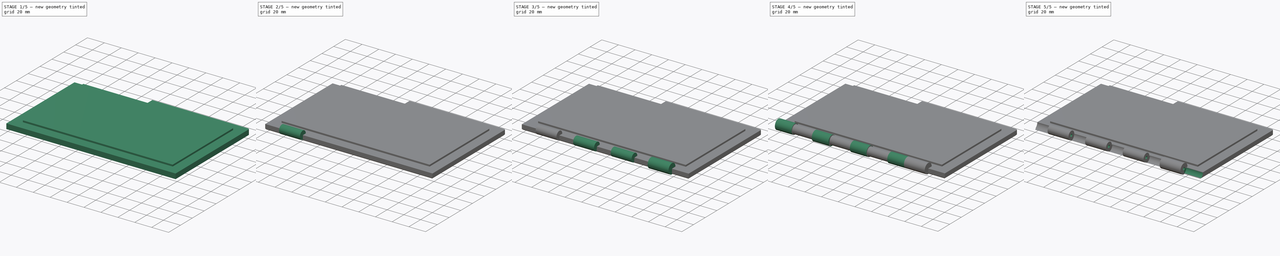
[diagram: build sequence overview — one tinted view per stage of 5, left to right]
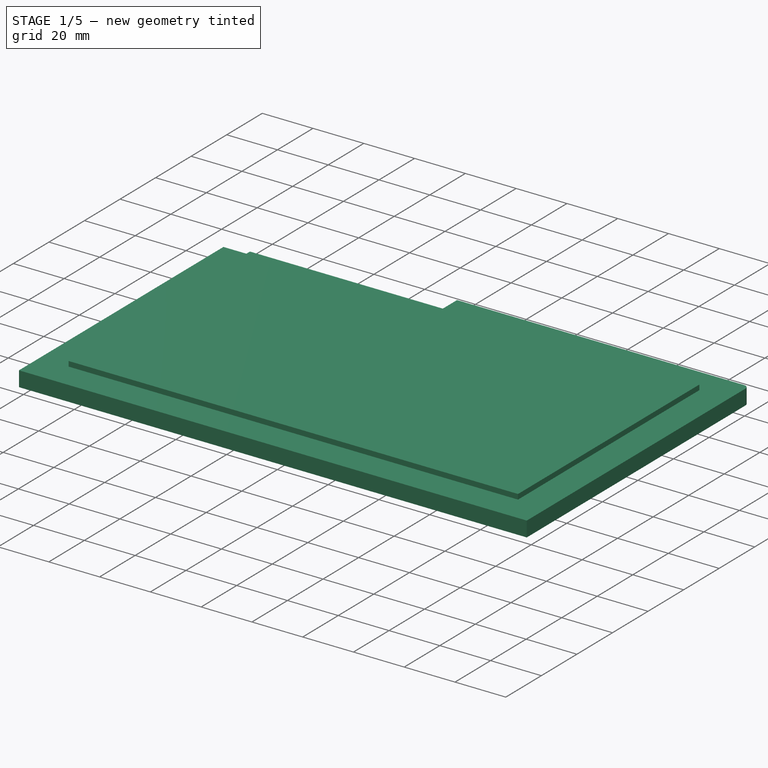
[diagram: stage 1 of 5 — iso view after this stage's code; geometry added in this stage tinted green]
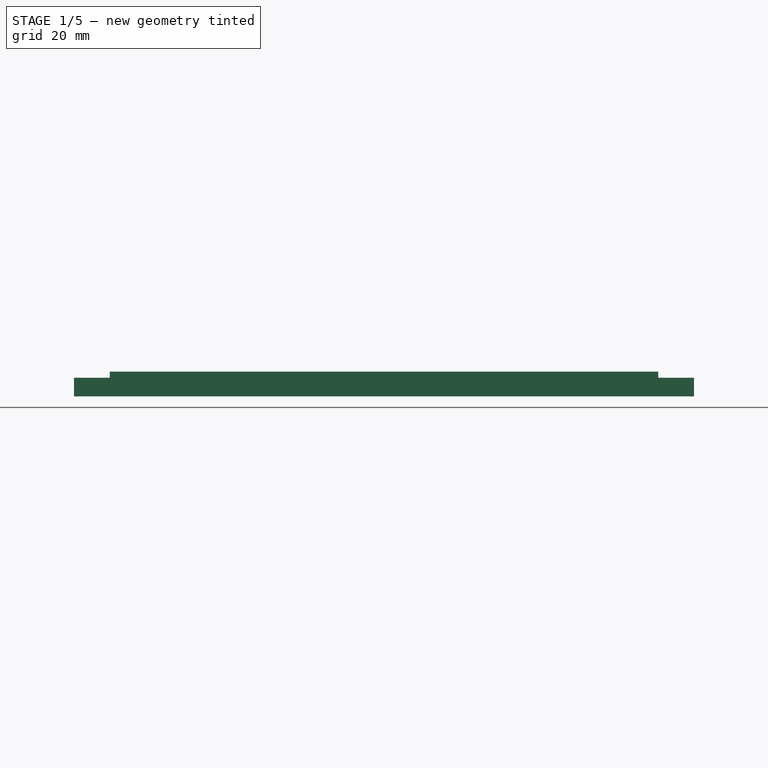
[diagram: stage 1 of 5 — front view after this stage's code; geometry added in this stage tinted green]
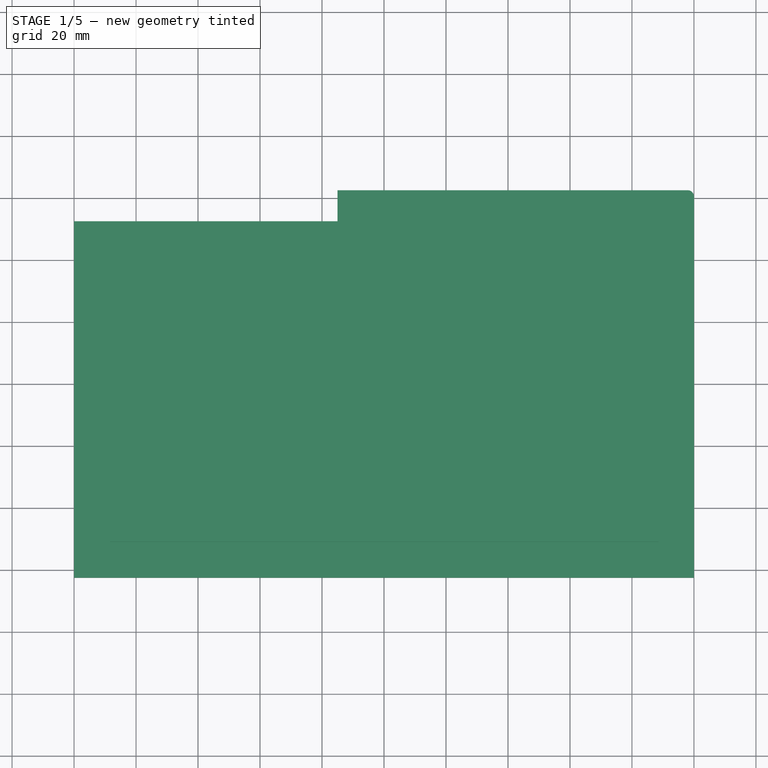
[diagram: stage 1 of 5 — top view after this stage's code; geometry added in this stage tinted green]
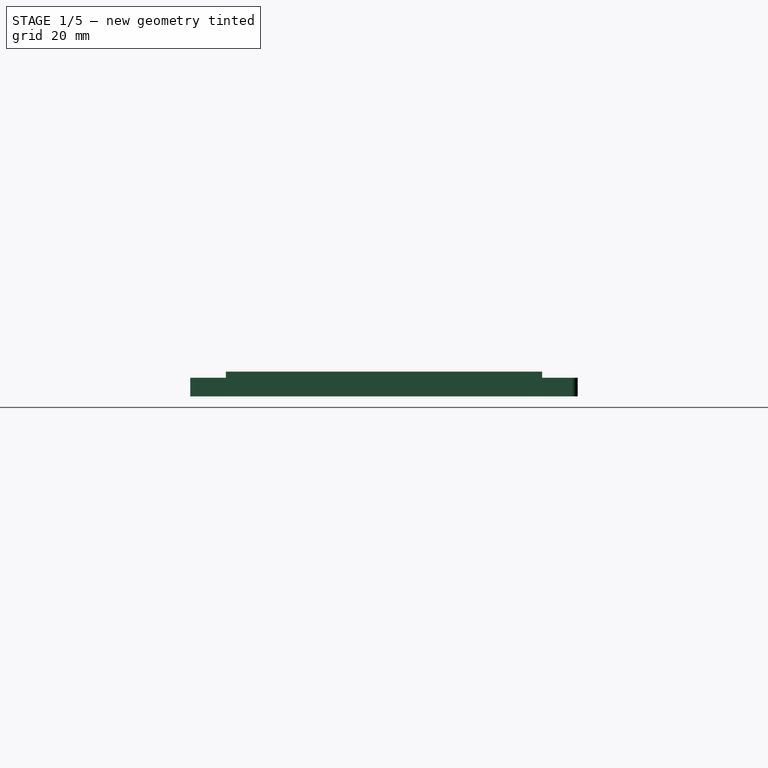
[diagram: stage 1 of 5 — right view after this stage's code; geometry added in this stage tinted green]
FCSTD DOCUMENT  (FreeCAD 0.19R)
Label: SwitchCaseSmallRLidLatch1
License: All rights reserved
LicenseURL: http://en.wikipedia.org/wiki/All_rights_reserved
objects: Part::Cylinder×10, Sketcher::SketchObject×4, Part::MultiFuse×3, PartDesign::Chamfer×3, PartDesign::Pad×2, PartDesign::Pocket×2, Part::Cut×2, PartDesign::ShapeBinder×1, PartDesign::Fillet×1, PartDesign::Body×1
note: 37 computed .brp shape members not serialized (recipe doc carries the construction recipe); baked Part::Feature solids carry a one-line shape summary decoded from their .brp

FEATURE [Sketcher::SketchObject] Sketch
  FullyConstrained = true
  MapMode = 5
  Support = -> [XY_Plane]
  sketch-geometry (4):
    g0: LineSegment StartX=-100 StartY=62.5 StartZ=0 EndX=100 EndY=62.5 EndZ=0
    g1: LineSegment StartX=100 StartY=62.5 StartZ=0 EndX=100 EndY=-62.5 EndZ=0
    g2: LineSegment StartX=100 StartY=-62.5 StartZ=0 EndX=-100 EndY=-62.5 EndZ=0
    g3: LineSegment StartX=-100 StartY=-62.5 StartZ=0 EndX=-100 EndY=62.5 EndZ=0
  constraints (11):
    c: Coincident(g0,g1)
    c: Coincident(g1,g2)
    c: Coincident(g2,g3)
    c: Coincident(g3,g0)
    c: Horizontal(g0)
    c: Horizontal(g2)
    c: Vertical(g1)
    c: Vertical(g3)
    c: Symmetric(g0,g2,g-1)
    c: Distance(g0) = 200
    c: Distance(g1) = 125
FEATURE [PartDesign::Pad] Pad
  Direction = (1,1,1)
  Length = 6
  Length2 = 100
  Profile = -> Sketch
  Type = 0
FEATURE [Sketcher::SketchObject] Sketch001
  FullyConstrained = true
  MapMode = 5
  Placement = pos=(0,0,6) rot=(0,0,1;0rad)
  Support = -> [Pad]
  sketch-geometry (4):
    g0: LineSegment StartX=-88.5 StartY=51 StartZ=0 EndX=88.5 EndY=51 EndZ=0
    g1: LineSegment StartX=88.5 StartY=51 StartZ=0 EndX=88.5 EndY=-51 EndZ=0
    g2: LineSegment StartX=88.5 StartY=-51 StartZ=0 EndX=-88.5 EndY=-51 EndZ=0
    g3: LineSegment StartX=-88.5 StartY=-51 StartZ=0 EndX=-88.5 EndY=51 EndZ=0
  constraints (11):
    c: Coincident(g0,g1)
    c: Coincident(g1,g2)
    c: Coincident(g2,g3)
    c: Coincident(g3,g0)
    c: Horizontal(g0)
    c: Horizontal(g2)
    c: Vertical(g1)
    c: Vertical(g3)
    c: Distance(g0) = 177
    c: Distance(g1) = 102
    c: Symmetric(g0,g2,g-1)
FEATURE [PartDesign::Pad] Pad001
  BaseFeature = -> Pad
  Direction = (1,1,1)
  Length = 2
  Length2 = 100
  Profile = -> Sketch001
  Type = 0
FEATURE [PartDesign::ShapeBinder] CopyCut001
  TraceSupport = false
FEATURE [Sketcher::SketchObject] Sketch002
  ExternalGeometry = -> [Pad001]
  FullyConstrained = true
  MapMode = 5
  Placement = pos=(-100,0,0) rot=(0.57735,-0.57735,-0.57735;2.0944rad)
  Support = -> [Pad001]
  sketch-geometry (4):
    g0: LineSegment StartX=-60.5 StartY=0 StartZ=0 EndX=-56.9645 EndY=3.53553 EndZ=0
    g1: LineSegment StartX=-56.9645 StartY=3.53553 StartZ=0 EndX=-53.4289 EndY=-1.4011e-12 EndZ=0
    g2: LineSegment StartX=-53.4289 StartY=-1.4011e-12 StartZ=0 EndX=-56.9645 EndY=-3.53553 EndZ=0
    g3: LineSegment StartX=-56.9645 StartY=-3.53553 StartZ=0 EndX=-60.5 EndY=0 EndZ=0
  constraints (12):
    c: Coincident(g0,g1)
    c: Coincident(g1,g2)
    c: Coincident(g2,g3)
    c: Coincident(g3,g0)
    c: Equal(g2,g3)
    c: Equal(g3,g0)
    c: Equal(g0,g1)
    c: Perpendicular(g1,g0)
    c: Angle(g1) = -0.785398
    c: Distance(g1) = 5
    c: PointOnObject(g0,g-1)
    c: Distance(g0,g-3) = 2
FEATURE [PartDesign::Pocket] Pocket
  BaseFeature = -> Pad001
  Length = 120
  Length2 = 100
  Profile = -> Sketch002
  Type = 0
FEATURE [Sketcher::SketchObject] Sketch003
  ExternalGeometry = -> [Pocket]
  FullyConstrained = true
  MapMode = 5
  Placement = pos=(0,0,0) rot=(1,0,0;3.14159rad)
  Support = -> [Pocket]
  sketch-geometry (4):
    g0: LineSegment StartX=-15 StartY=-62.5 StartZ=0 EndX=-100 EndY=-62.5 EndZ=0
    g1: LineSegment StartX=-100 StartY=-62.5 StartZ=0 EndX=-100 EndY=-52.5 EndZ=0
    g2: LineSegment StartX=-100 StartY=-52.5 StartZ=0 EndX=-15 EndY=-52.5 EndZ=0
    g3: LineSegment StartX=-15 StartY=-52.5 StartZ=0 EndX=-15 EndY=-62.5 EndZ=0
  constraints (11):
    c: Coincident(g0,g1)
    c: Coincident(g1,g2)
    c: Coincident(g2,g3)
    c: Coincident(g3,g0)
    c: Horizontal(g0)
    c: Horizontal(g2)
    c: Vertical(g1)
    c: Vertical(g3)
    c: Distance(g1) = 10
    c: Coincident(g0,g-3)
    c: DistanceX(g0) = -15
FEATURE [PartDesign::Pocket] Pocket001
  BaseFeature = -> Pocket
  Length = 5
  Length2 = 100
  Profile = -> Sketch003
  Type = 1
FEATURE [PartDesign::Fillet] Fillet
  Base = -> Pocket001 [Edge2]
  BaseFeature = -> Pocket001
  Radius = 2
  SupportTransform = false
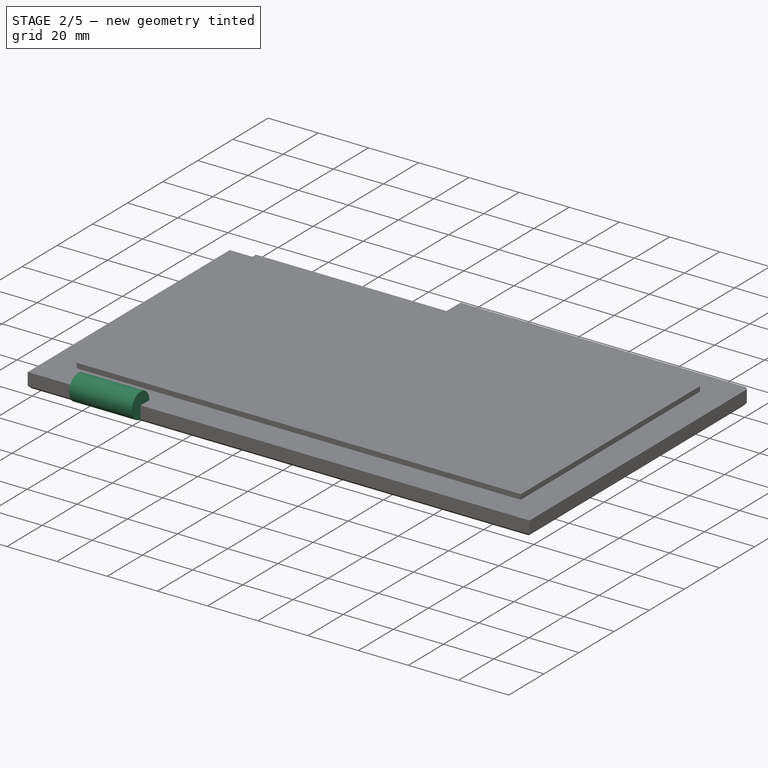
[diagram: stage 2 of 5 — iso view after this stage's code; geometry added in this stage tinted green]
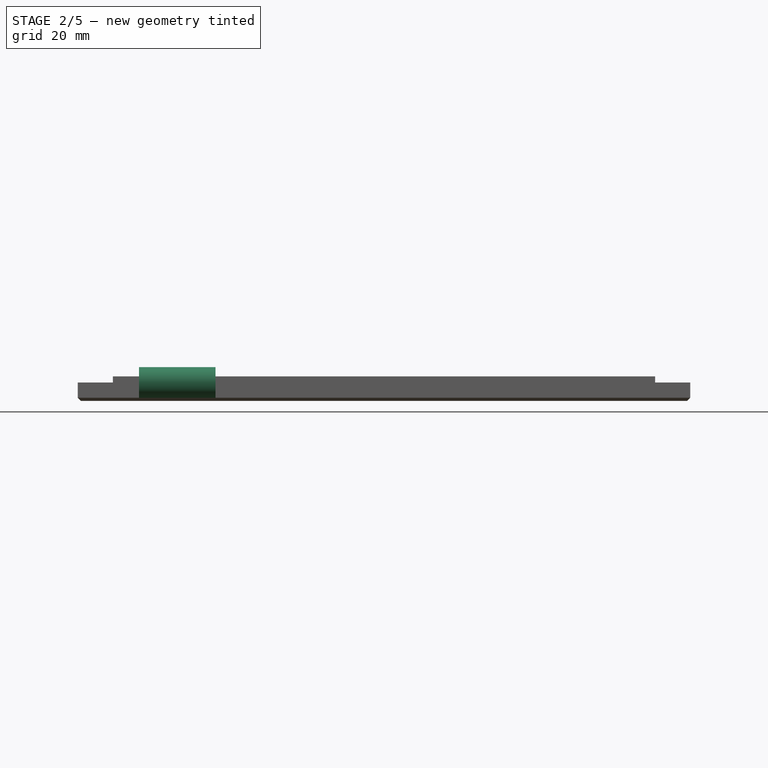
[diagram: stage 2 of 5 — front view after this stage's code; geometry added in this stage tinted green]
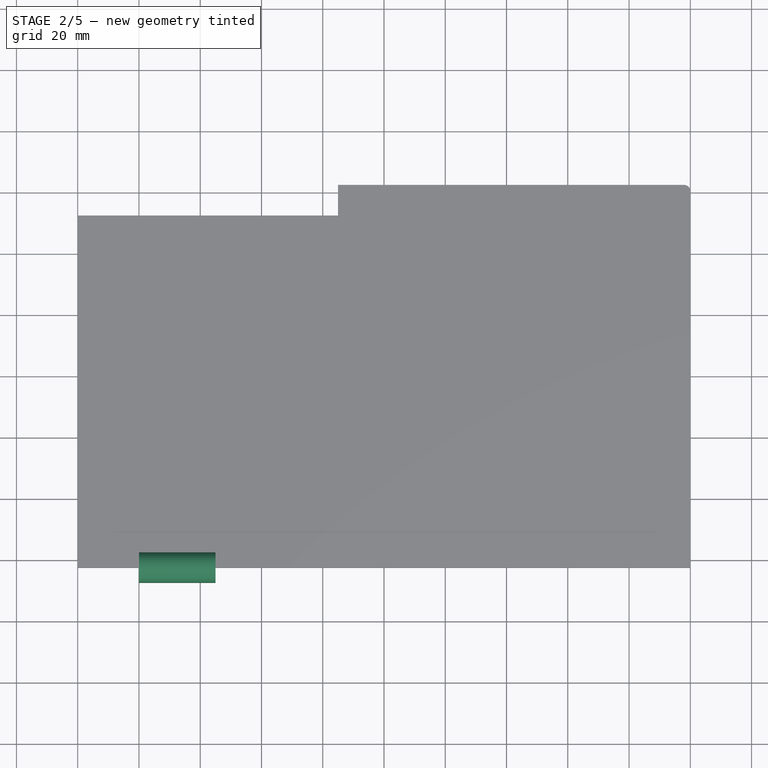
[diagram: stage 2 of 5 — top view after this stage's code; geometry added in this stage tinted green]
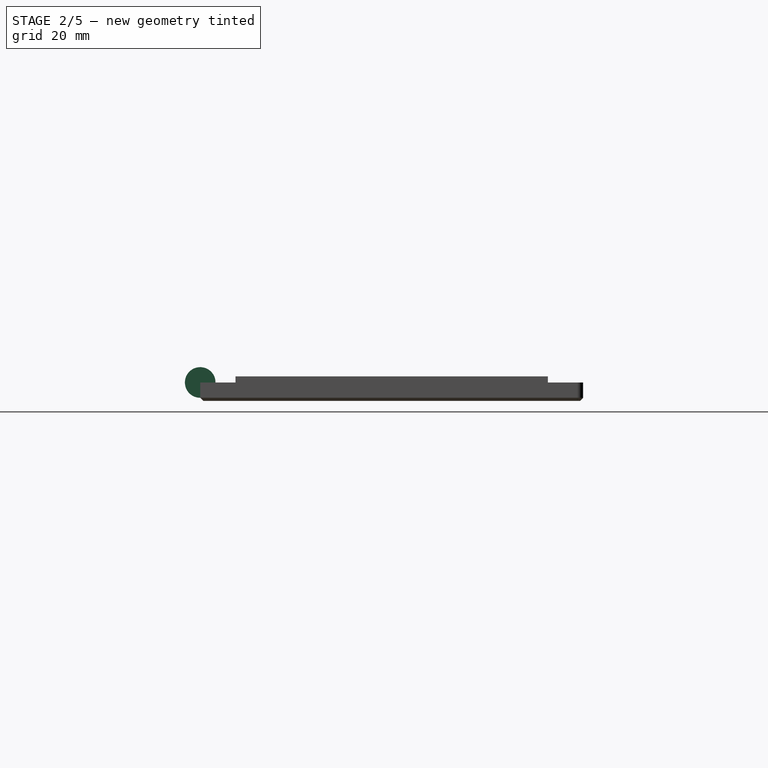
[diagram: stage 2 of 5 — right view after this stage's code; geometry added in this stage tinted green]
FEATURE [Part::Cylinder] Cylinder003
  Angle = 360
  AttacherType = Attacher::AttachEngine3D
  Height = 25
  Placement = pos=(-80,-62.5,6) rot=(0,1,0;1.5708rad)
  Radius = 5
FEATURE [PartDesign::Chamfer] Chamfer
  Angle = 45
  Base = -> Fillet [Edge5]
  BaseFeature = -> Fillet
  ChamferType = 0
  FlipDirection = false
  Size = 1
  Size2 = 1
  SupportTransform = false
FEATURE [PartDesign::Chamfer] Chamfer001
  Angle = 45
  Base = -> Chamfer [Edge31]
  BaseFeature = -> Chamfer
  ChamferType = 0
  FlipDirection = false
  Size = 1
  Size2 = 1
  SupportTransform = false
FEATURE [PartDesign::Chamfer] Chamfer002
  Angle = 45
  Base = -> Chamfer001 [Edge1]
  BaseFeature = -> Chamfer001
  ChamferType = 0
  FlipDirection = false
  Size = 1
  Size2 = 1
  SupportTransform = false
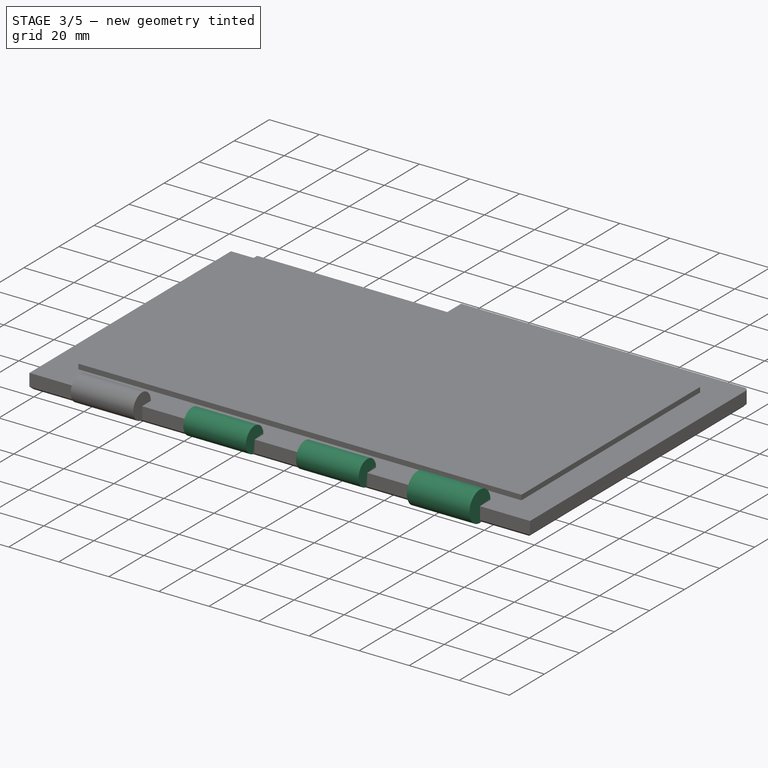
[diagram: stage 3 of 5 — iso view after this stage's code; geometry added in this stage tinted green]
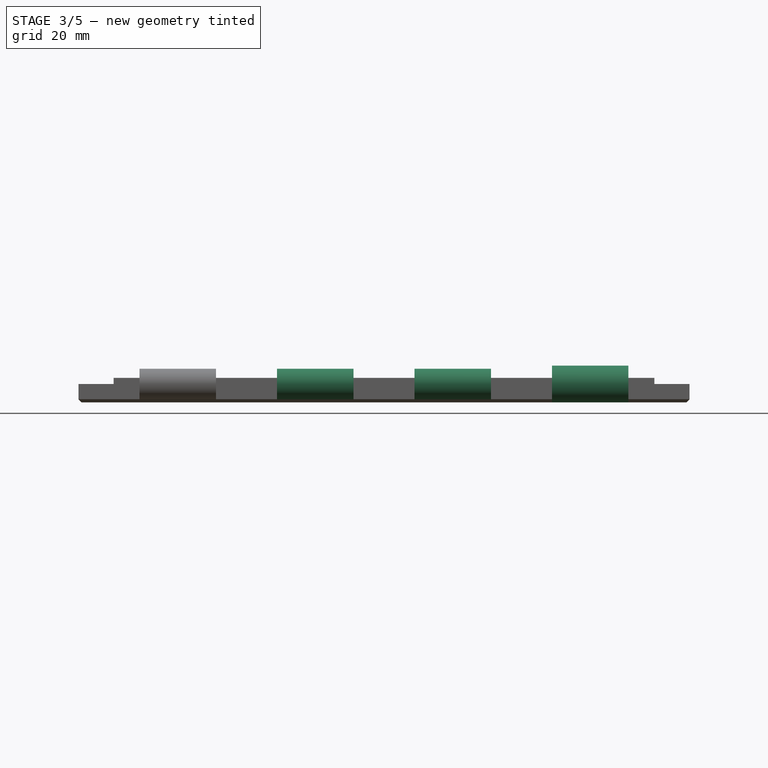
[diagram: stage 3 of 5 — front view after this stage's code; geometry added in this stage tinted green]
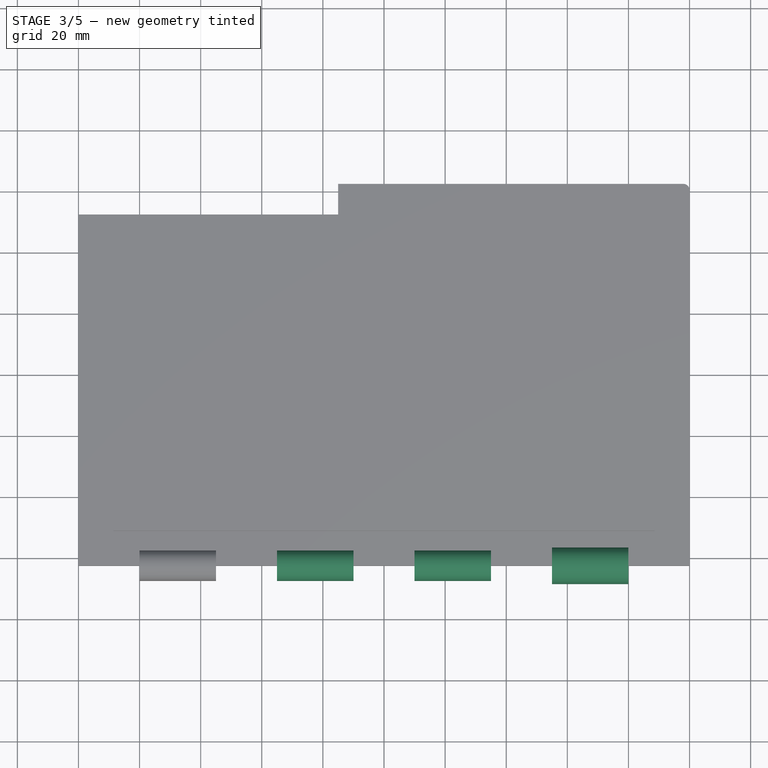
[diagram: stage 3 of 5 — top view after this stage's code; geometry added in this stage tinted green]
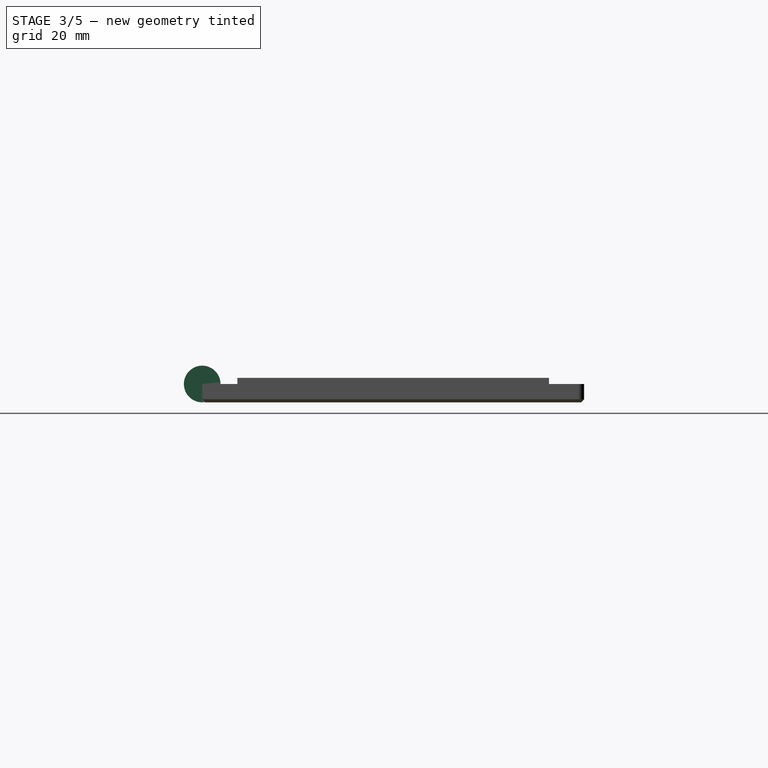
[diagram: stage 3 of 5 — right view after this stage's code; geometry added in this stage tinted green]
FEATURE [Part::Cylinder] Cylinder
  Angle = 360
  AttacherType = Attacher::AttachEngine3D
  Height = 25
  Placement = pos=(55,-62.5,6) rot=(0,1,0;1.5708rad)
  Radius = 6
FEATURE [Part::Cylinder] Cylinder001
  Angle = 360
  AttacherType = Attacher::AttachEngine3D
  Height = 25
  Placement = pos=(10,-62.5,6) rot=(0,1,0;1.5708rad)
  Radius = 5
FEATURE [Part::Cylinder] Cylinder002
  Angle = 360
  AttacherType = Attacher::AttachEngine3D
  Height = 25
  Placement = pos=(-35,-62.5,6) rot=(0,1,0;1.5708rad)
  Radius = 5
FEATURE [Part::MultiFuse] Fusion
  Shapes = -> [Cylinder,Cylinder001,Cylinder002,Cylinder003]
FEATURE [PartDesign::Body] Body
  Group = -> [Sketch,Pad,Sketch001,Pad001,CopyCut001,Sketch002,Pocket,Sketch003,Pocket001,Fillet,Chamfer,Chamfer001,Chamfer002]
  Origin = -> Origin
  Tip = -> Chamfer002
FEATURE [Part::MultiFuse] Fusion002
  Shapes = -> [Fusion,Chamfer002]
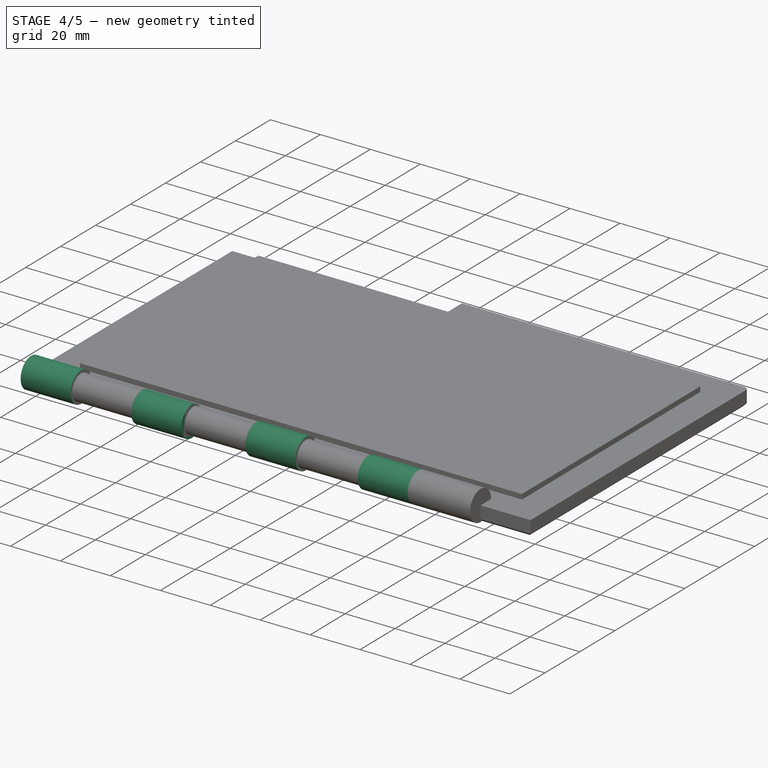
[diagram: stage 4 of 5 — iso view after this stage's code; geometry added in this stage tinted green]
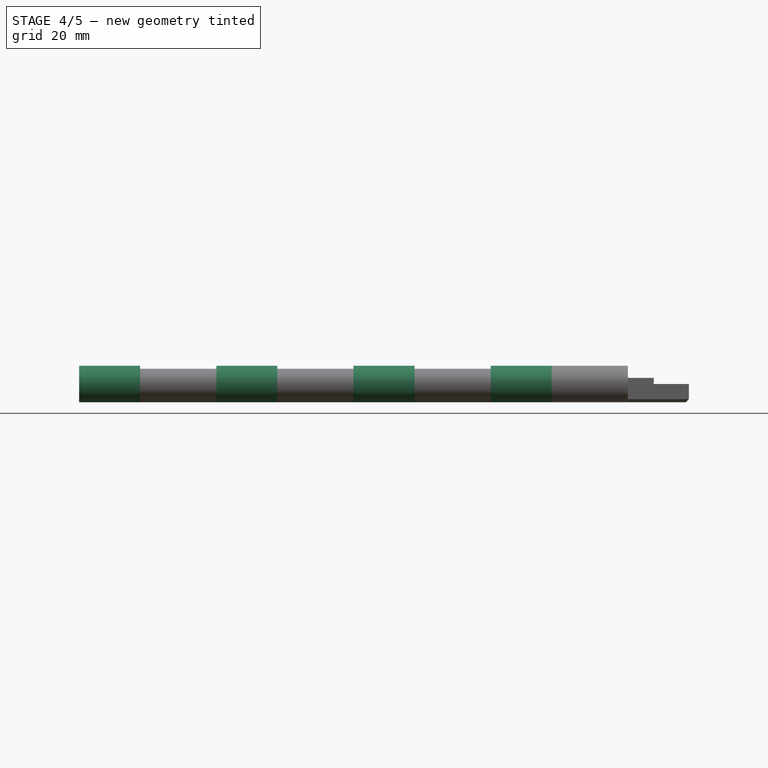
[diagram: stage 4 of 5 — front view after this stage's code; geometry added in this stage tinted green]
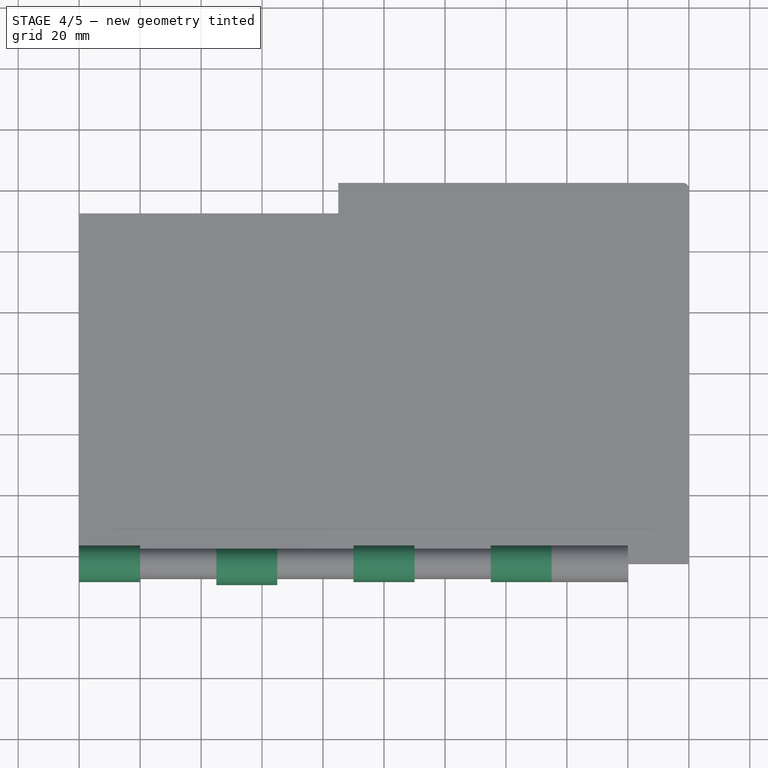
[diagram: stage 4 of 5 — top view after this stage's code; geometry added in this stage tinted green]
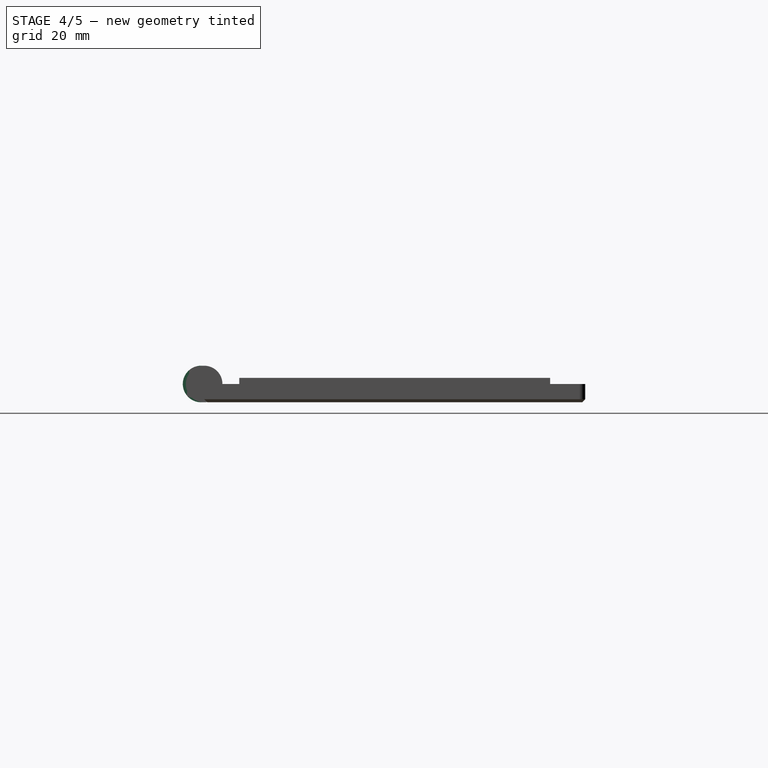
[diagram: stage 4 of 5 — right view after this stage's code; geometry added in this stage tinted green]
FEATURE [Part::Cylinder] Cylinder005
  Angle = 360
  AttacherType = Attacher::AttachEngine3D
  Height = 20
  Placement = pos=(35,-62.5,6) rot=(0,1,0;1.5708rad)
  Radius = 6
FEATURE [Part::Cylinder] Cylinder006
  Angle = 360
  AttacherType = Attacher::AttachEngine3D
  Height = 20
  Placement = pos=(-10,-62.5,6) rot=(0,1,0;1.5708rad)
  Radius = 6
FEATURE [Part::Cylinder] Cylinder007
  Angle = 360
  AttacherType = Attacher::AttachEngine3D
  Height = 20
  Placement = pos=(-55,-63.5,6) rot=(0,1,0;1.5708rad)
  Radius = 6
FEATURE [Part::Cylinder] Cylinder008
  Angle = 360
  AttacherType = Attacher::AttachEngine3D
  Height = 20
  Placement = pos=(-100,-62.5,6) rot=(0,1,0;1.5708rad)
  Radius = 6
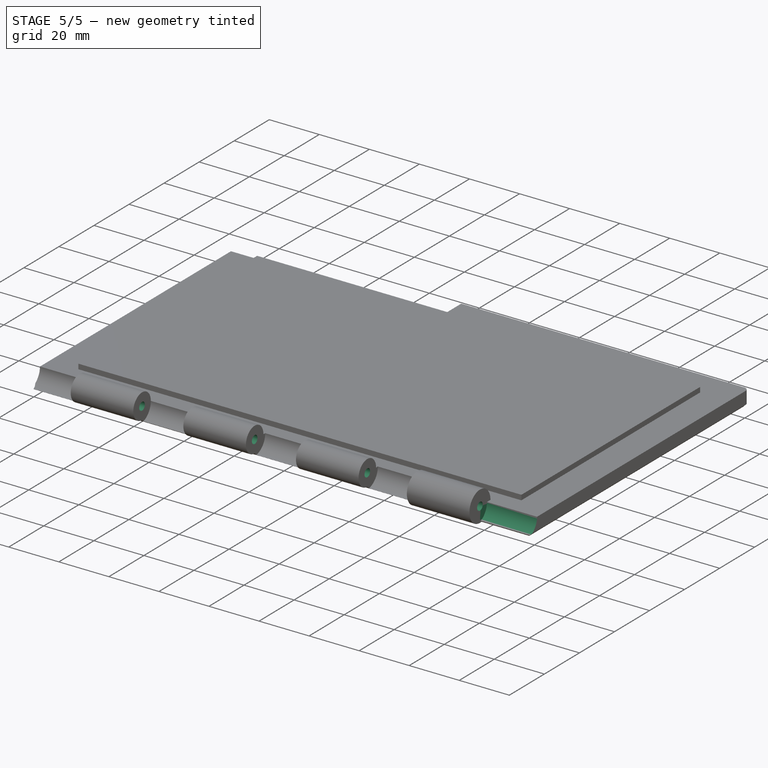
[diagram: stage 5 of 5 — iso view after this stage's code; geometry added in this stage tinted green]
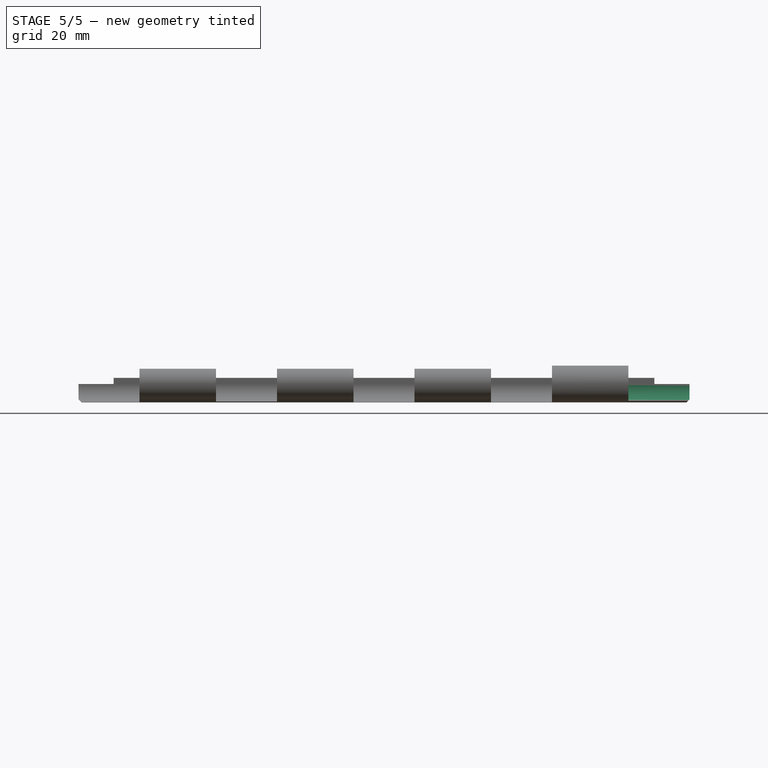
[diagram: stage 5 of 5 — front view after this stage's code; geometry added in this stage tinted green]
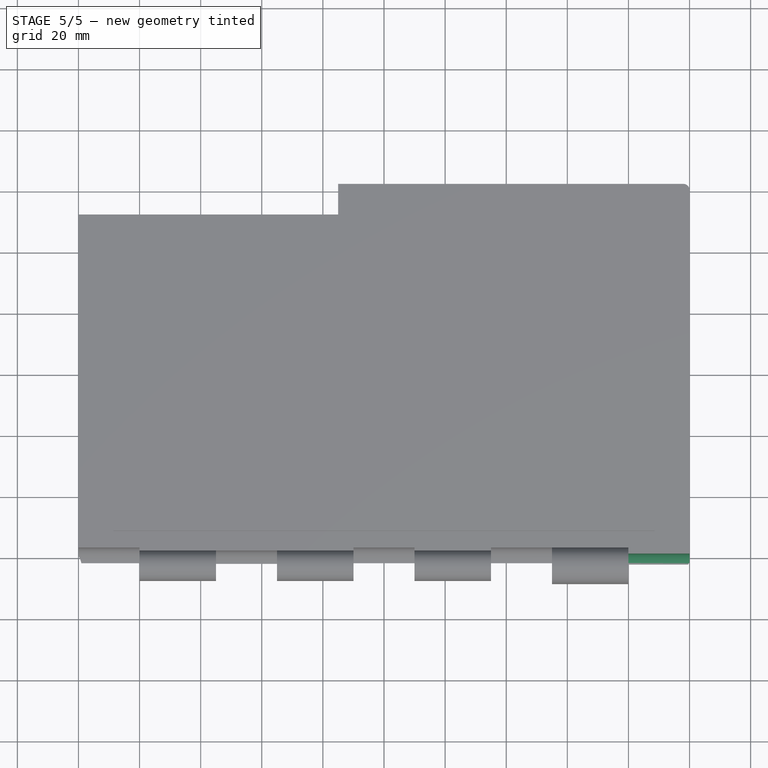
[diagram: stage 5 of 5 — top view after this stage's code; geometry added in this stage tinted green]
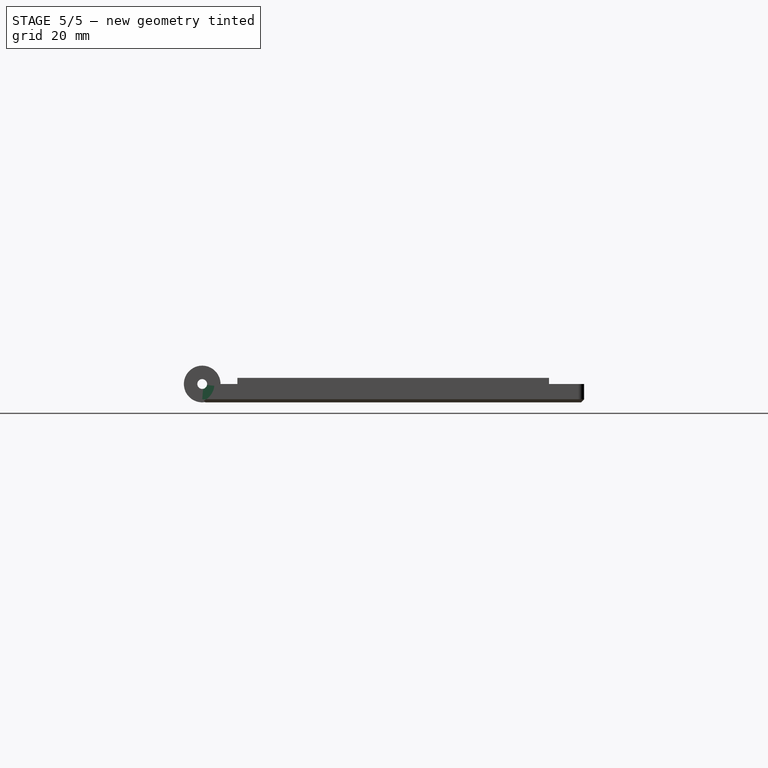
[diagram: stage 5 of 5 — right view after this stage's code; geometry added in this stage tinted green]
FEATURE [Part::Cylinder] Cylinder004
  Angle = 360
  AttacherType = Attacher::AttachEngine3D
  Height = 20
  Placement = pos=(80,-64.5,6) rot=(0,1,0;1.5708rad)
  Radius = 6
FEATURE [Part::Cylinder] Cylinder009
  Angle = 360
  AttacherType = Attacher::AttachEngine3D
  Height = 220
  Placement = pos=(-110,-62.5,6) rot=(0,1,0;1.5708rad)
  Radius = 1.6
FEATURE [Part::MultiFuse] Fusion001
  Shapes = -> [Cylinder004,Cylinder005,Cylinder006,Cylinder007,Cylinder008]
FEATURE [Part::Cut] Cut
  Base = -> Fusion002
  Tool = -> Fusion001
FEATURE [Part::Cut] Cut001
  Base = -> Cut
  Tool = -> Cylinder009
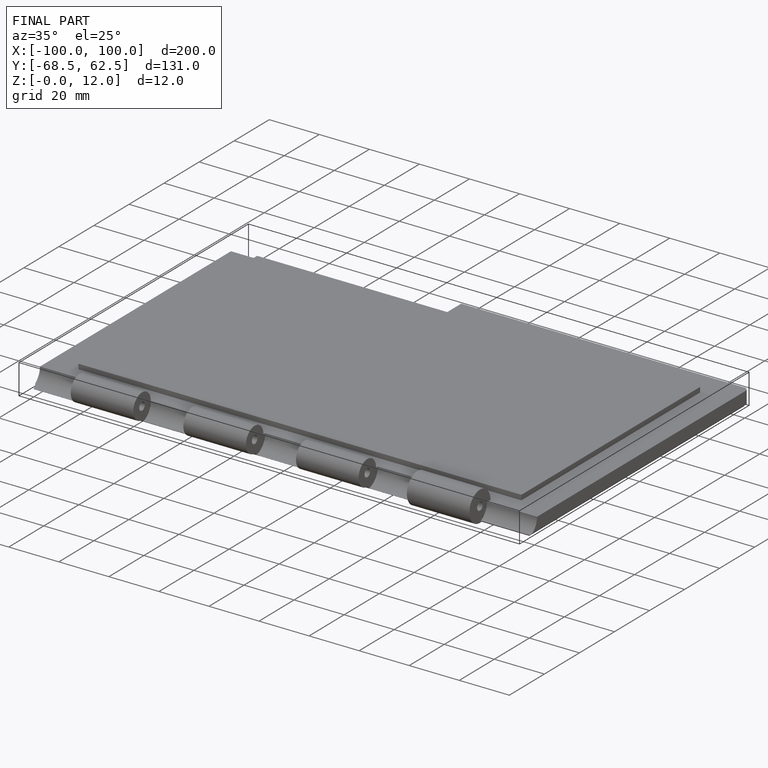
[diagram: finished part — iso view with bounding-box wireframe]
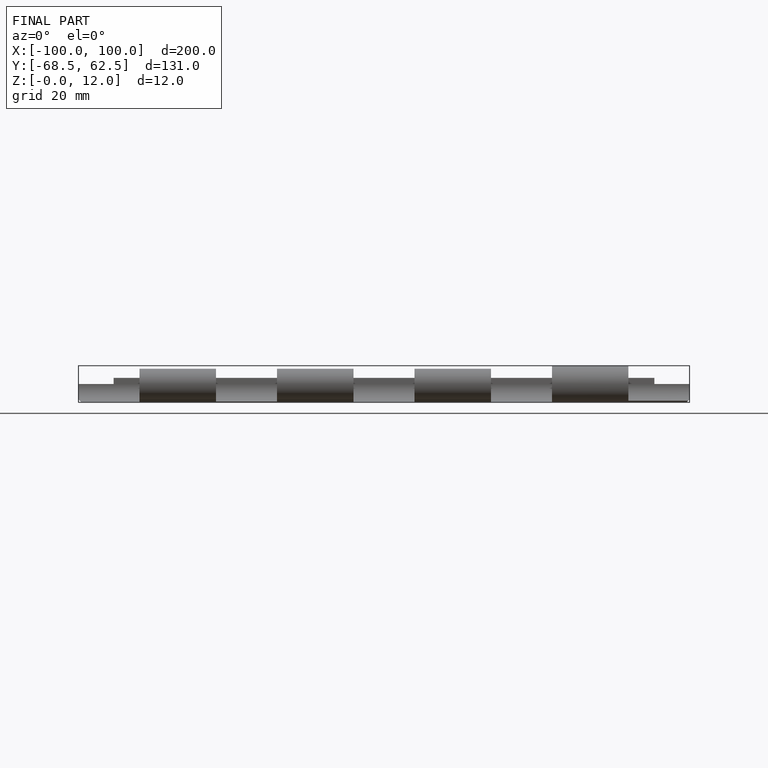
[diagram: finished part — front view with bounding-box wireframe]
